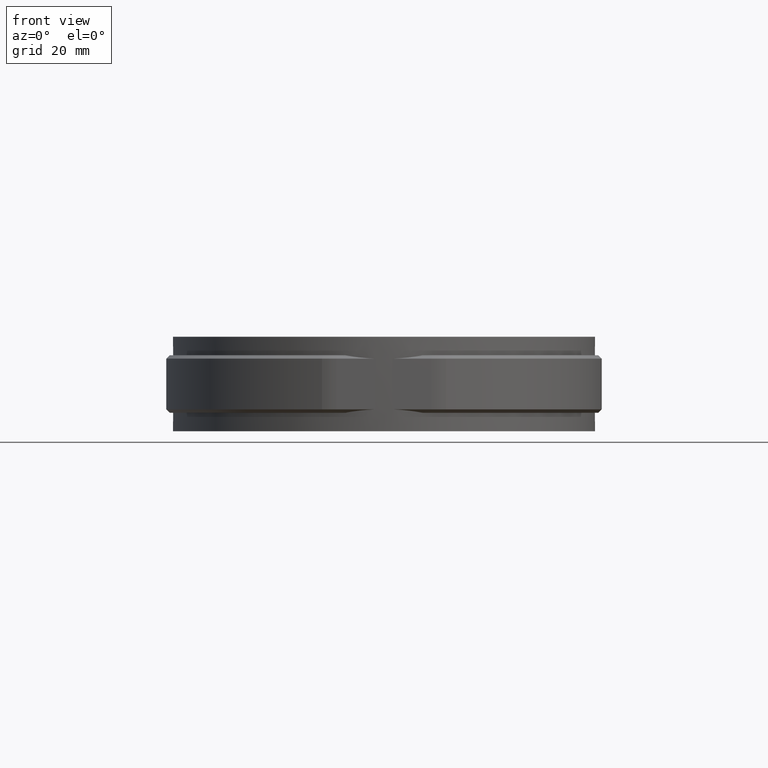
[diagram: clean part render]
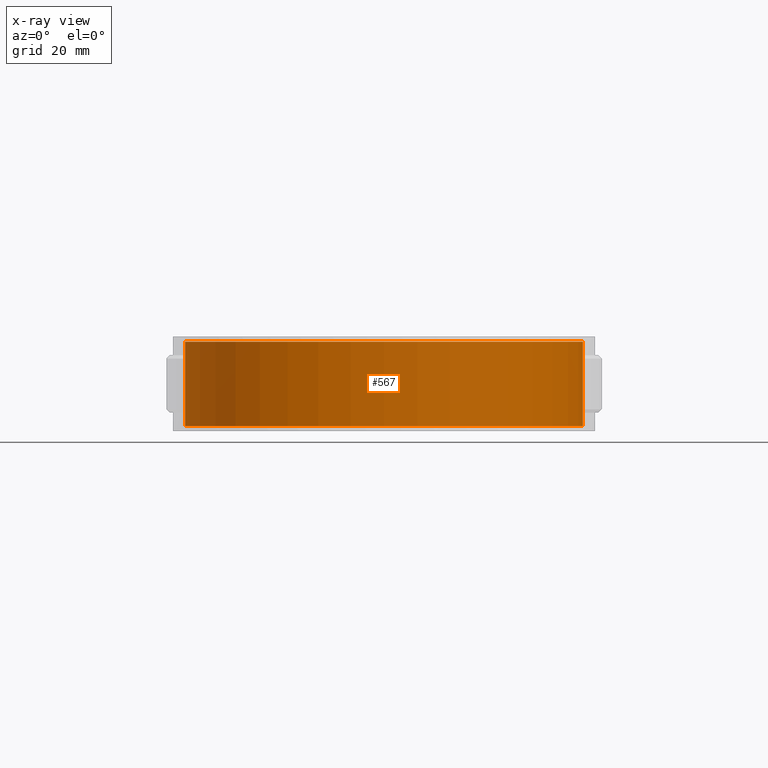
[diagram: x-ray — body ghosted, one internal face saturated and labeled with its STEP entity id]
A machine part, front view, then the same camera in x-ray: the body is ghosted and one INTERNAL B-rep face — a face not visible from any outside direction — is saturated and labeled: STEP entity #567.
In plain terms, the highlighted cylindrical surface (partial cylindrical patch) has radius 59 mm, axis along (0, 0, 1).
Its self-contained STEP definition (entity closure, byte-faithful):
#567 = ADVANCED_FACE( '', ( #1047 ), #1048, .T. );
#1047 = FACE_OUTER_BOUND( '', #2291, .T. );
#1048 = CYLINDRICAL_SURFACE( '', #2292, 59.0000000000000 );
#2291 = EDGE_LOOP( '', ( #5074, #5075, #5076, #5077 ) );
#2292 = AXIS2_PLACEMENT_3D( '', #5078, #5079, #5080 );
#5074 = ORIENTED_EDGE( '', *, *, #7219, .F. );
#5075 = ORIENTED_EDGE( '', *, *, #7333, .F. );
#5076 = ORIENTED_EDGE( '', *, *, #7230, .T. );
#5077 = ORIENTED_EDGE( '', *, *, #7390, .T. );
#5078 = CARTESIAN_POINT( '', ( 2.60208521396521E-015, 3.46944695195361E-014, -14.0000000000000 ) );
#5079 = DIRECTION( '', ( 0.000000000000000, 0.000000000000000, 1.00000000000000 ) );
#5080 = DIRECTION( '', ( -0.0847457627118643, -0.996402607233835, 0.000000000000000 ) );
#7219 = EDGE_CURVE( '', #8295, #8297, #8298, .F. );
#7230 = EDGE_CURVE( '', #8318, #8316, #8319, .F. );
#7333 = EDGE_CURVE( '', #8318, #8295, #8500, .T. );
#7390 = EDGE_CURVE( '', #8316, #8297, #8586, .T. );
#8295 = VERTEX_POINT( '', #11413 );
#8297 = VERTEX_POINT( '', #11415 );
#8298 = CIRCLE( '', #11416, 59.0000000000000 );
#8316 = VERTEX_POINT( '', #11440 );
#8318 = VERTEX_POINT( '', #11442 );
#8319 = CIRCLE( '', #11443, 59.0000000000000 );
#8500 = LINE( '', #12201, #12202 );
#8586 = LINE( '', #12413, #12414 );
#11413 = CARTESIAN_POINT( '', ( -6.66129032258065, 58.6227533577049, 12.5000000000000 ) );
#11415 = CARTESIAN_POINT( '', ( 6.66129032258062, 58.6227533577048, 12.5000000000000 ) );
#11416 = AXIS2_PLACEMENT_3D( '', #14071, #14072, #14073 );
#11440 = CARTESIAN_POINT( '', ( 6.66129032258062, 58.6227533577048, -12.5000000000000 ) );
#11442 = CARTESIAN_POINT( '', ( -6.66129032258065, 58.6227533577049, -12.5000000000000 ) );
#11443 = AXIS2_PLACEMENT_3D( '', #14092, #14093, #14094 );
#12201 = CARTESIAN_POINT( '', ( -6.66129032258065, 58.6227533577049, -14.0000000000000 ) );
#12202 = VECTOR( '', #14206, 1000.00000000000 );
#12413 = CARTESIAN_POINT( '', ( 6.66129032258060, 58.6227533577048, -14.0000000000000 ) );
#12414 = VECTOR( '', #14297, 1000.00000000000 );
#14071 = CARTESIAN_POINT( '', ( 2.60208521396521E-015, 3.46944695195361E-014, 12.5000000000000 ) );
#14072 = DIRECTION( '', ( 0.000000000000000, 0.000000000000000, -1.00000000000000 ) );
#14073 = DIRECTION( '', ( -1.00000000000000, 0.000000000000000, 0.000000000000000 ) );
#14092 = CARTESIAN_POINT( '', ( 2.60208521396521E-015, 3.46944695195361E-014, -12.5000000000000 ) );
#14093 = DIRECTION( '', ( 0.000000000000000, 0.000000000000000, -1.00000000000000 ) );
#14094 = DIRECTION( '', ( -1.00000000000000, 0.000000000000000, 0.000000000000000 ) );
#14206 = DIRECTION( '', ( 0.000000000000000, 0.000000000000000, 1.00000000000000 ) );
#14297 = DIRECTION( '', ( 0.000000000000000, 0.000000000000000, 1.00000000000000 ) );